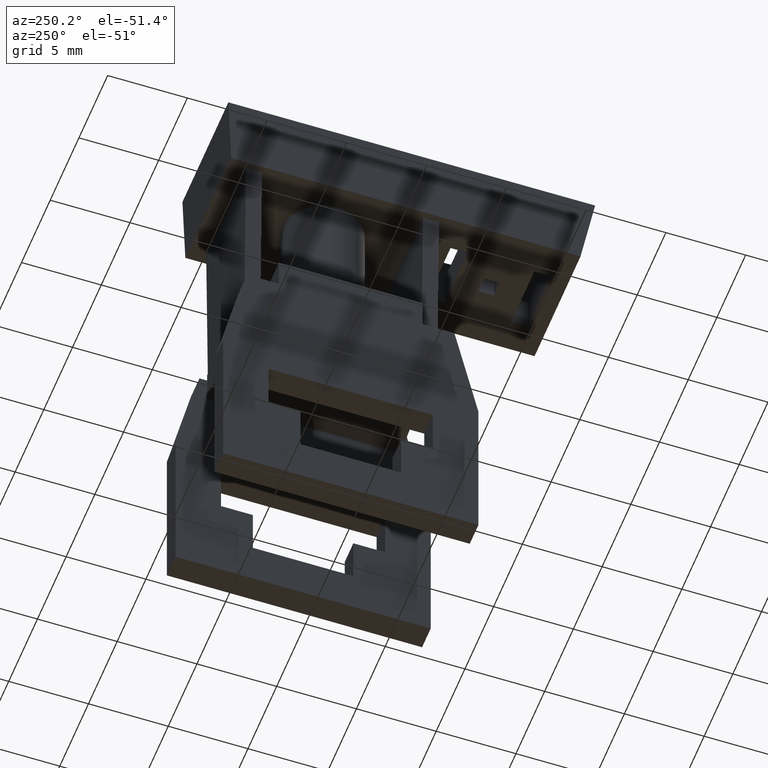
[diagram: clean part render]
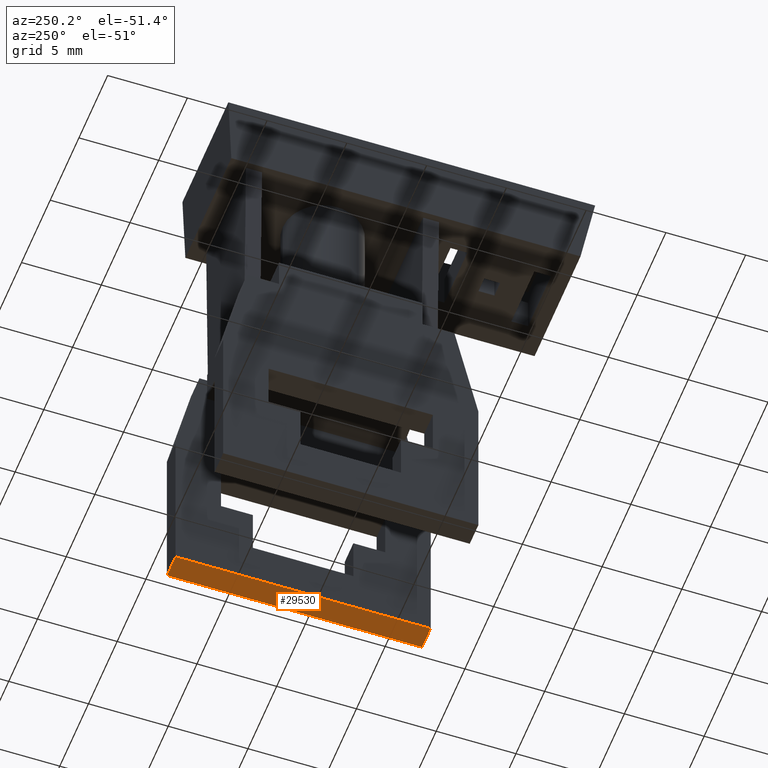
[diagram: same view with one face highlighted and labeled with its STEP entity id]
A machine part, auxiliary view. The second image highlights one B-rep face of the part: STEP entity #29530.
In plain terms, the highlighted planar face has unit normal (0, 0, -1).
Its self-contained STEP definition (entity closure, byte-faithful):
#26060=CARTESIAN_POINT('',(-1.50000000000001,-7.10542735760101E-15,
3.5527136788005E-15));
#26070=DIRECTION('',(0.,0.,1.));
#26080=VECTOR('',#26070,1.);
#26090=LINE('',#26060,#26080);
#26100=CARTESIAN_POINT('',(-1.50000000000001,-7.10542735760101E-15,
6.9217303377289E-15));
#26110=VERTEX_POINT('',#26100);
#26120=CARTESIAN_POINT('',(-1.50000000000001,-7.10542735760101E-15,16.))
;
#26130=VERTEX_POINT('',#26120);
#26140=EDGE_CURVE('',#26110,#26130,#26090,.T.);
#27730=CARTESIAN_POINT('',(-5.32907051820075E-15,-5.32907051820075E-15,
16.));
#27740=VERTEX_POINT('',#27730);
#28070=CARTESIAN_POINT('',(-5.32907051820075E-15,-5.32907051820075E-15,
6.9217303377289E-15));
#28080=VERTEX_POINT('',#28070);
#28110=CARTESIAN_POINT('',(-5.32907051820075E-15,-5.32907051820075E-15,
3.5527136788005E-15));
#28120=DIRECTION('',(0.,0.,1.));
#28130=VECTOR('',#28120,1.);
#28140=LINE('',#28110,#28130);
#28150=EDGE_CURVE('',#28080,#27740,#28140,.T.);
#29210=CARTESIAN_POINT('',(-5.32907051820075E-15,-5.32907051820075E-15,
16.));
#29220=DIRECTION('',(-1.,-1.18423789293351E-15,-9.86076131526265E-32));
#29230=VECTOR('',#29220,1.);
#29240=LINE('',#29210,#29230);
#29250=EDGE_CURVE('',#27740,#26130,#29240,.T.);
#29370=CARTESIAN_POINT('',(-5.32907051820075E-15,-5.32907051820075E-15,
3.5527136788005E-15));
#29380=DIRECTION('',(1.18423789293351E-15,-1.,0.));
#29390=DIRECTION('',(-1.,-1.18423789293351E-15,0.));
#29400=AXIS2_PLACEMENT_3D('',#29370,#29380,#29390);
#29410=PLANE('',#29400);
#29420=ORIENTED_EDGE('',*,*,#29250,.T.);
#29430=ORIENTED_EDGE('',*,*,#28150,.T.);
#29440=CARTESIAN_POINT('',(-5.32907051820075E-15,-5.32907051820075E-15,
6.9217303377289E-15));
#29450=DIRECTION('',(-1.,-1.18423789293351E-15,-9.86076131526265E-32));
#29460=VECTOR('',#29450,1.);
#29470=LINE('',#29440,#29460);
#29480=EDGE_CURVE('',#28080,#26110,#29470,.T.);
#29490=ORIENTED_EDGE('',*,*,#29480,.F.);
#29500=ORIENTED_EDGE('',*,*,#26140,.F.);
#29510=EDGE_LOOP('',(#29500,#29490,#29430,#29420));
#29520=FACE_OUTER_BOUND('',#29510,.T.);
#29530=ADVANCED_FACE('',(#29520),#29410,.T.);